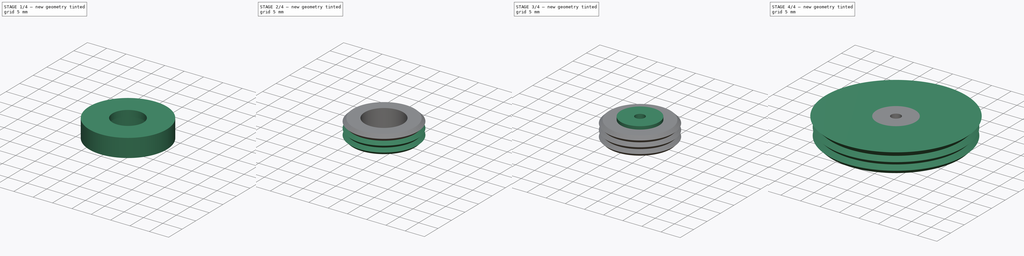
[diagram: build sequence overview — one tinted view per stage of 4, left to right]
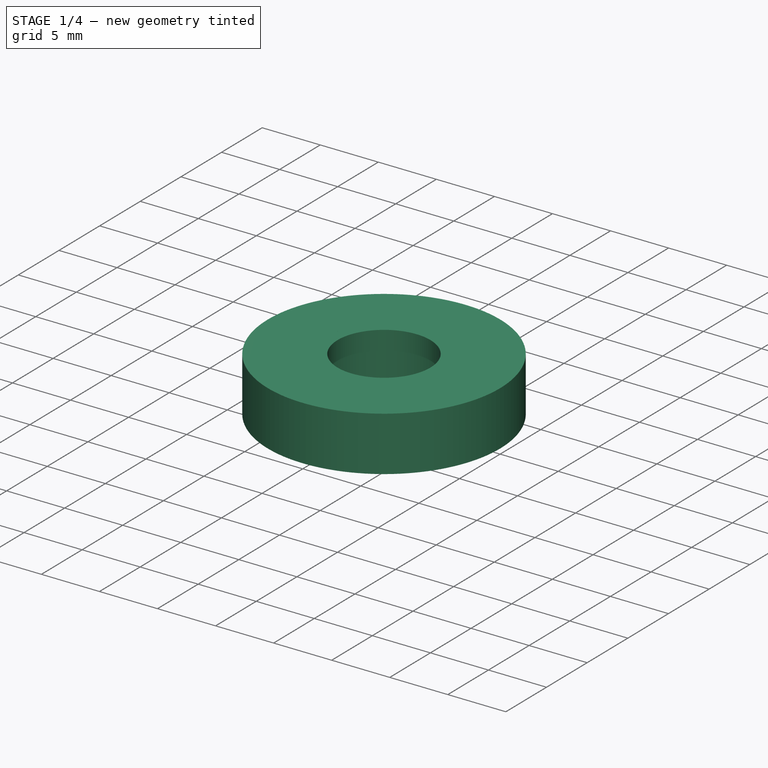
[diagram: stage 1 of 4 — iso view after this stage's code; geometry added in this stage tinted green]
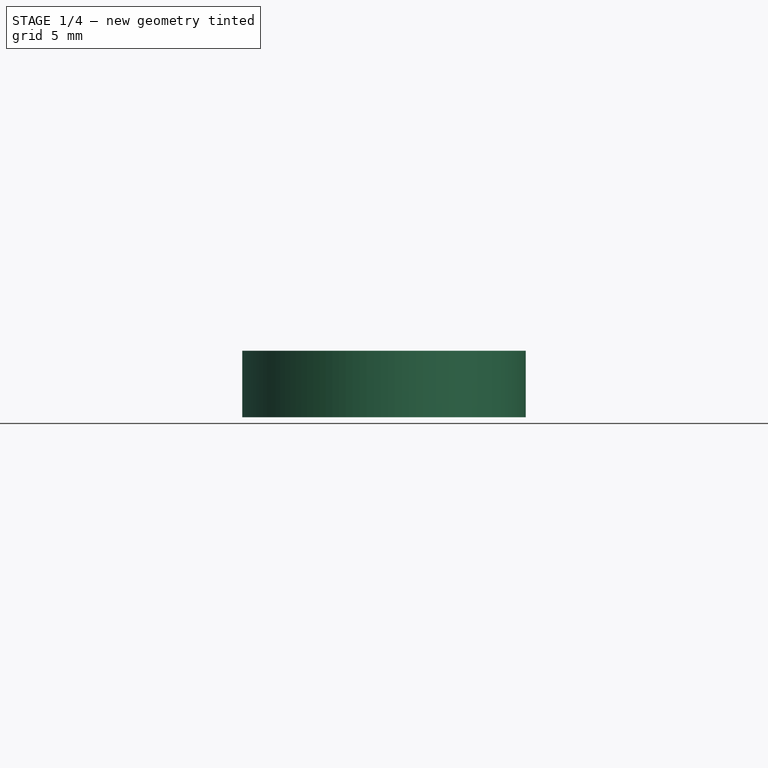
[diagram: stage 1 of 4 — front view after this stage's code; geometry added in this stage tinted green]
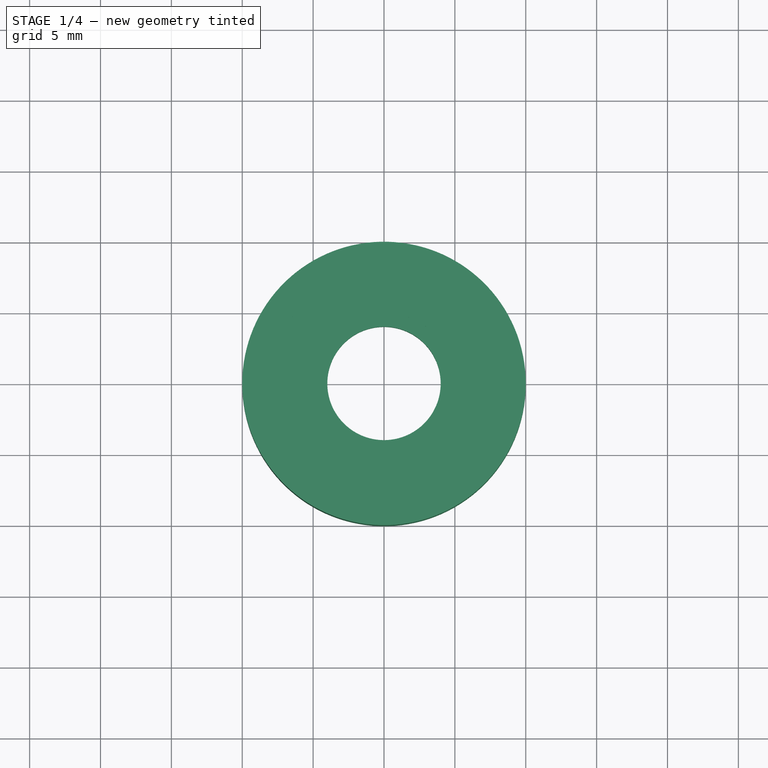
[diagram: stage 1 of 4 — top view after this stage's code; geometry added in this stage tinted green]
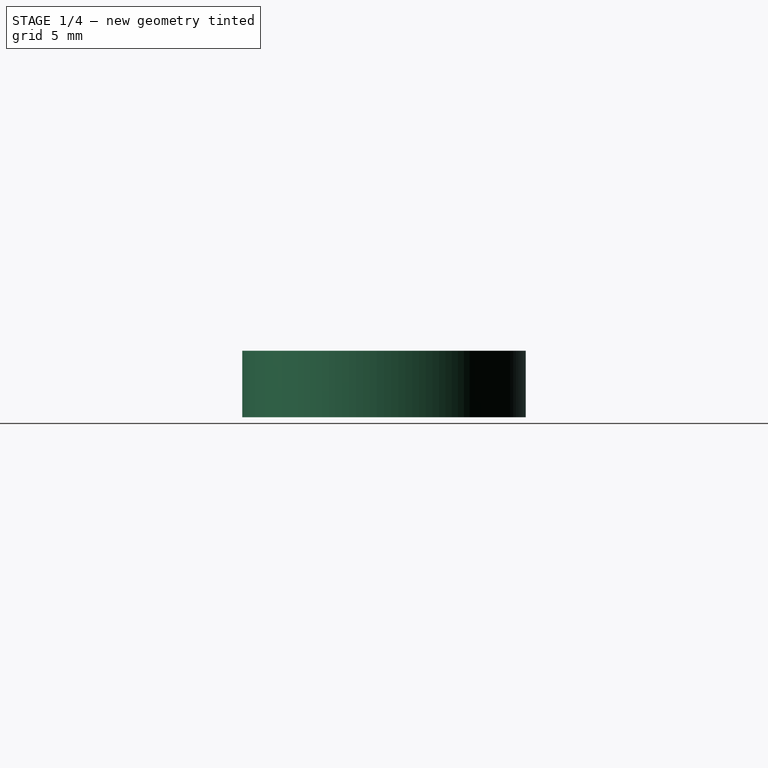
[diagram: stage 1 of 4 — right view after this stage's code; geometry added in this stage tinted green]
FCSTD DOCUMENT  (FreeCAD 0.16RUnknown)
Label: LensFixTemplate
License: All rights reserved
LicenseURL: http://en.wikipedia.org/wiki/All_rights_reserved
objects: Part::FeaturePython×4, Sketcher::SketchObject×3, PartDesign::Revolution×3, App::DocumentObjectGroup×2, Spreadsheet::Sheet×1, Part::MultiCommon×1, Part::MultiFuse×1
note: 15 computed .brp shape members not serialized (recipe doc carries the construction recipe); baked Part::Feature solids carry a one-line shape summary decoded from their .brp

FEATURE [Sketcher::SketchObject] Sketch001  label="OuterGroove"
  Placement = pos=(0,0,0) rot=(1,0,0;1.5708rad)
  sketch-geometry (6):
    g0: LineSegment StartX=4 StartY=3.2 StartZ=0 EndX=4 EndY=1.6 EndZ=0
    g1: LineSegment StartX=4 StartY=1.6 StartZ=0 EndX=8 EndY=1.6 EndZ=0
    g2: LineSegment StartX=8 StartY=1.6 StartZ=0 EndX=8.8 EndY=2.4 EndZ=0
    g3: LineSegment StartX=8.8 StartY=2.4 StartZ=0 EndX=8 EndY=3.2 EndZ=0
    g4: LineSegment StartX=8 StartY=3.2 StartZ=0 EndX=4 EndY=3.2 EndZ=0
    g5: LineSegment [constr] StartX=4 StartY=2.4 StartZ=0 EndX=8.8 EndY=2.4 EndZ=0
  constraints (17):
    c: Coincident(g0,g1)
    c: Coincident(g1,g2)
    c: Coincident(g2,g3)
    c: Coincident(g3,g4)
    c: Coincident(g4,g0)
    c: Horizontal(g5)
    c: Horizontal(g1)
    c: Horizontal(g4)
    c: Vertical(g0)
    c: Perpendicular(g2,g3)
    c: PointOnObject(g5,g0)
    c: Coincident(g5,g2)
    c: Symmetric(g3,g1,g5)
    c: DistanceY(g0,g0) = 1.6
    c: DistanceX(g0) = 4
    c: DistanceY(g0) = 3.2
    c: DistanceX(g3) = 8
FEATURE [PartDesign::Revolution] Revolution001  label="OuterGroove001"
  Angle = 360
  Axis = (0,0,1)
  Base = (0,0,0)
  Placement = pos=(0,0,0) rot=(1,0,0;1.5708rad)
  ReferenceAxis = -> Sketch001 [V_Axis]
  Reversed = true
  Sketch = -> Sketch001
FEATURE [Sketcher::SketchObject] Sketch002  label="InnerGrooveDom"
  Placement = pos=(0,0,0) rot=(1,0,0;1.5708rad)
  expr: Constraints[9] = pars.PlateThick - pars.LipThick
  sketch-geometry (4):
    g0: LineSegment StartX=5 StartY=3.2 StartZ=0 EndX=10 EndY=3.2 EndZ=0
    g1: LineSegment StartX=10 StartY=3.2 StartZ=0 EndX=10 EndY=-1.5 EndZ=0
    g2: LineSegment StartX=10 StartY=-1.5 StartZ=0 EndX=5 EndY=-1.5 EndZ=0
    g3: LineSegment StartX=5 StartY=-1.5 StartZ=0 EndX=5 EndY=3.2 EndZ=0
  constraints (12):
    c: Coincident(g0,g1)
    c: Coincident(g1,g2)
    c: Coincident(g2,g3)
    c: Coincident(g3,g0)
    c: Horizontal(g0)
    c: Horizontal(g2)
    c: Vertical(g1)
    c: Vertical(g3)
    c: DistanceX(g0) = 5
    c: DistanceY(g0) = 3.2
    c: DistanceY(g2) = -1.5
    c: DistanceX(g0) = 10
FEATURE [PartDesign::Revolution] Revolution002  label="InnerGrooveDom001"
  Angle = 360
  Axis = (0,0,1)
  Base = (0,0,0)
  Placement = pos=(0,0,0) rot=(1,0,0;1.5708rad)
  ReferenceAxis = -> Sketch002 [V_Axis]
  Reversed = true
  Sketch = -> Sketch002
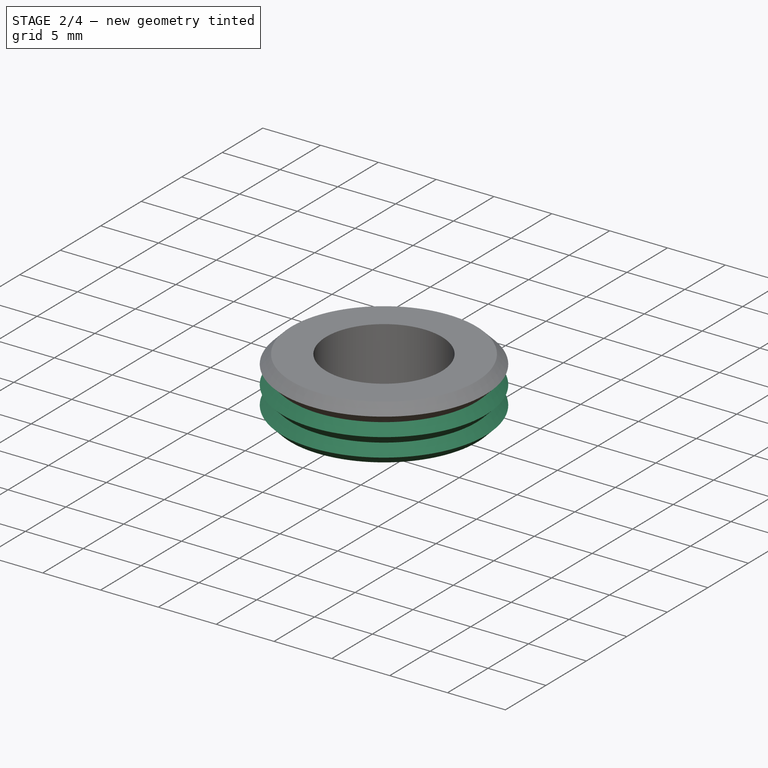
[diagram: stage 2 of 4 — iso view after this stage's code; geometry added in this stage tinted green]
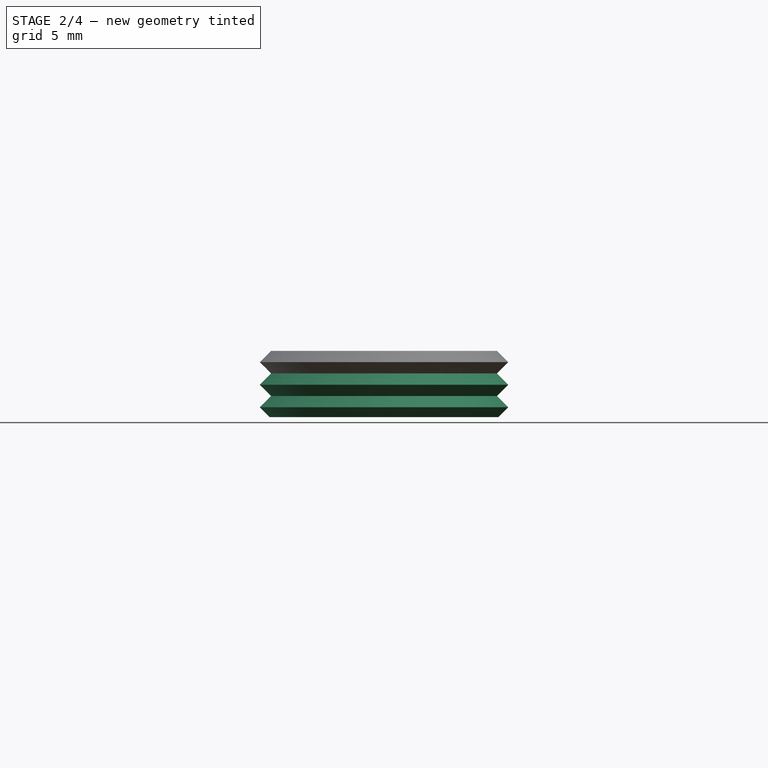
[diagram: stage 2 of 4 — front view after this stage's code; geometry added in this stage tinted green]
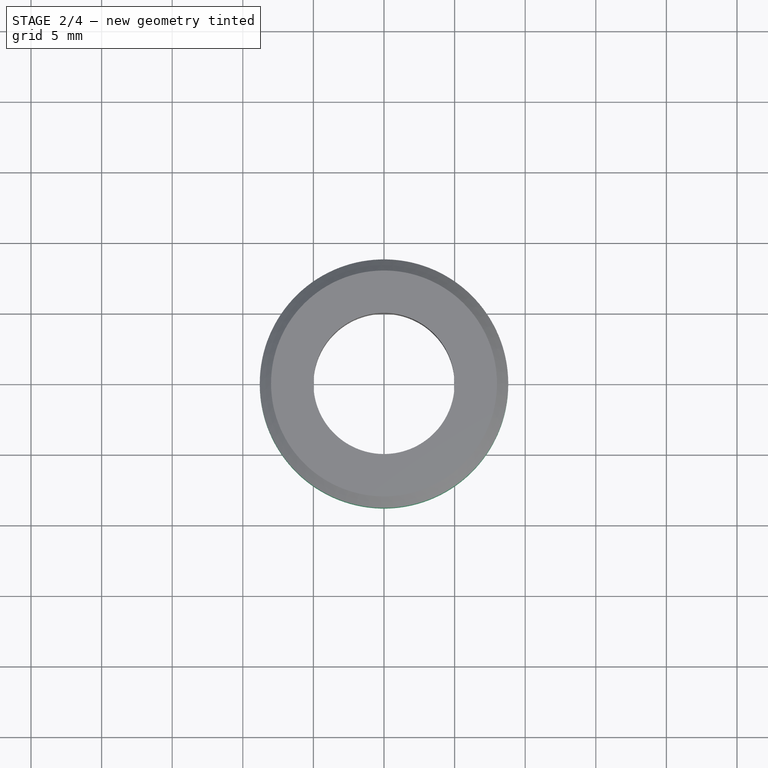
[diagram: stage 2 of 4 — top view after this stage's code; geometry added in this stage tinted green]
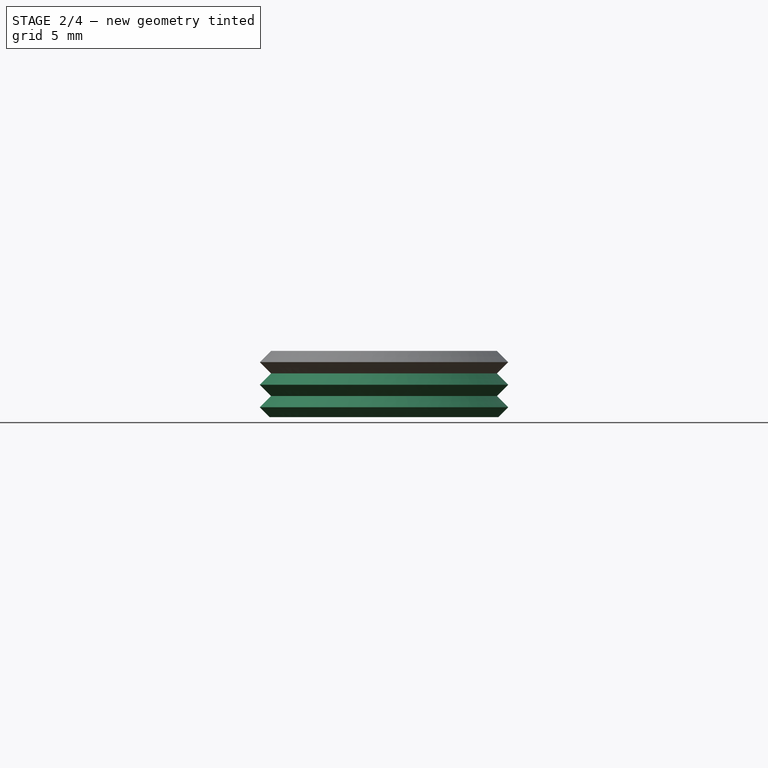
[diagram: stage 2 of 4 — right view after this stage's code; geometry added in this stage tinted green]
FEATURE [Part::FeaturePython] Array  label="OuterGrooves"  # Draft array (typed FeaturePython)
  Angle = 360
  ArrayType = 0
  Axis = (0,0,1)
  Base = -> Revolution001
  Center = (0,0,0)
  Fuse = true
  IntervalAxis = (0,0,0)
  IntervalX = (1,0,0)
  IntervalY = (0,1,0)
  IntervalZ = (0,0,-1.6)
  NumberPolar = 1
  NumberX = 1
  NumberY = 1
  NumberZ = 6
FEATURE [Part::MultiCommon] Common  label="InnerGrooveTool"
  Shapes = -> [Array,Revolution002]
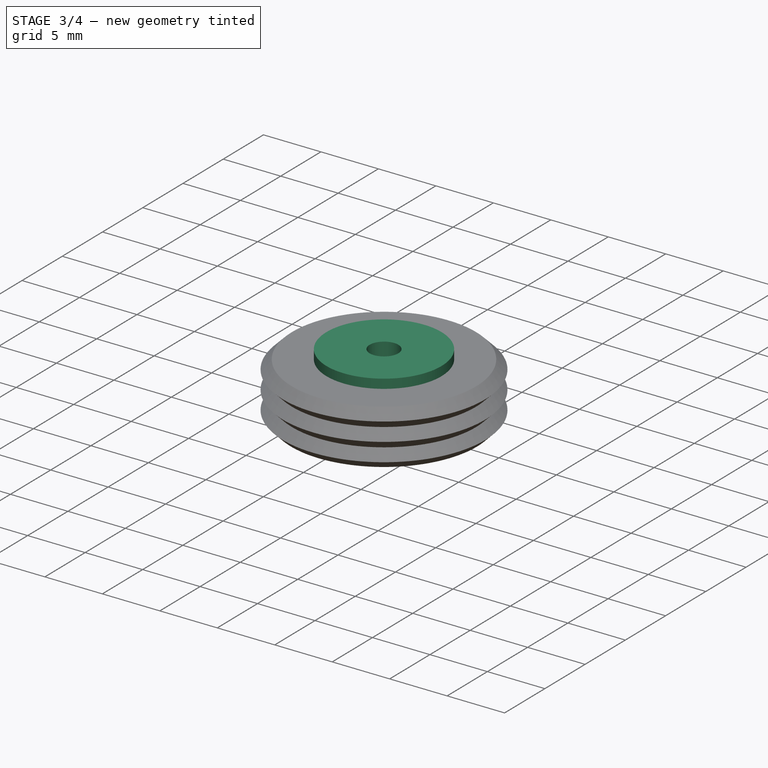
[diagram: stage 3 of 4 — iso view after this stage's code; geometry added in this stage tinted green]
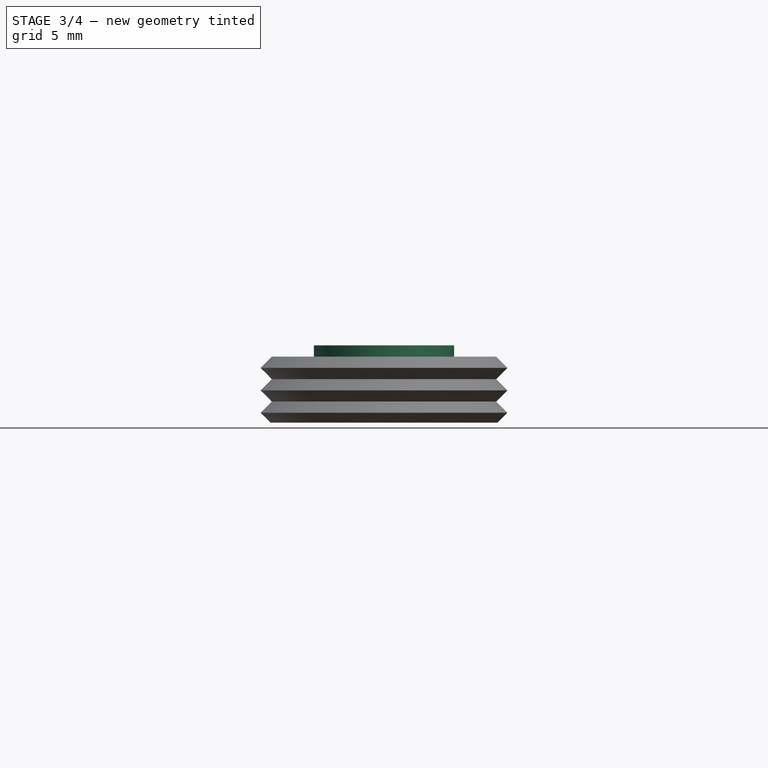
[diagram: stage 3 of 4 — front view after this stage's code; geometry added in this stage tinted green]
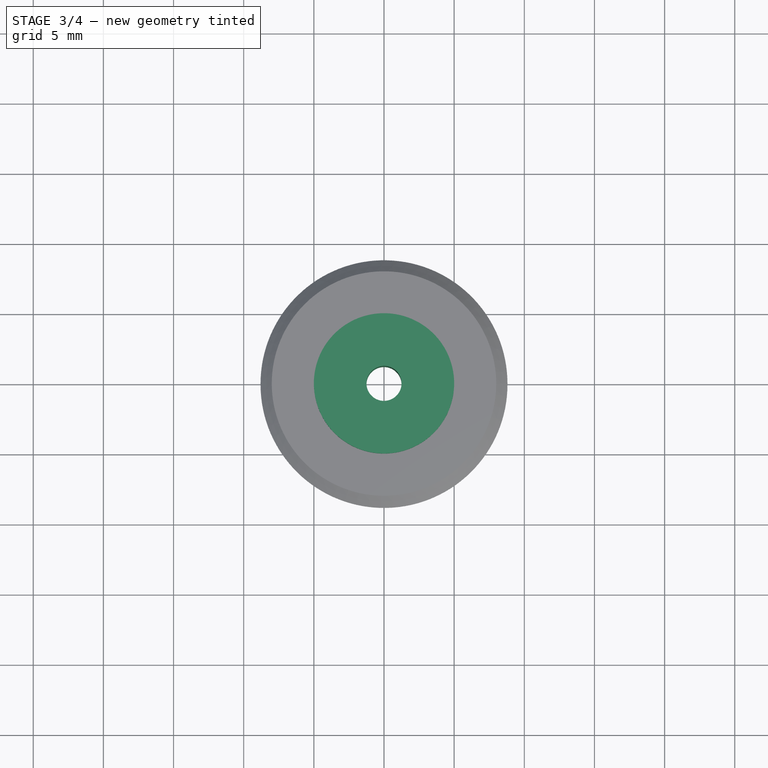
[diagram: stage 3 of 4 — top view after this stage's code; geometry added in this stage tinted green]
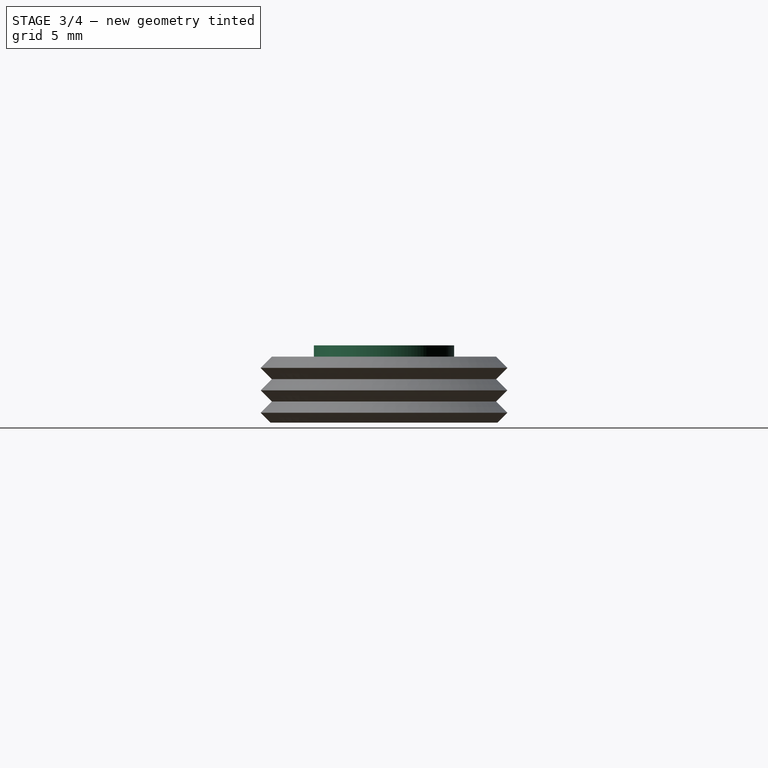
[diagram: stage 3 of 4 — right view after this stage's code; geometry added in this stage tinted green]
FEATURE [App::DocumentObjectGroup] Group  label="Reference"
  Group = -> [FlexiRing_01]
FEATURE [Sketcher::SketchObject] Sketch  label="Main"
  Placement = pos=(0,0,0) rot=(1,0,0;1.5708rad)
  expr: Constraints[12] = pars.PlateThick + 1.5
  expr: Constraints[17] = pars.PlateThick
  expr: Constraints[13] = pars.LipThick
  sketch-geometry (6):
    g0: LineSegment StartX=1.25 StartY=4 StartZ=0 EndX=1.25 EndY=-1.5 EndZ=0
    g1: LineSegment StartX=1.25 StartY=-1.5 StartZ=0 EndX=8 EndY=-1.5 EndZ=0
    g2: LineSegment StartX=8 StartY=-1.5 StartZ=0 EndX=8 EndY=3.2 EndZ=0
    g3: LineSegment StartX=8 StartY=3.2 StartZ=0 EndX=5 EndY=3.2 EndZ=0
    g4: LineSegment StartX=5 StartY=3.2 StartZ=0 EndX=5 EndY=4 EndZ=0
    g5: LineSegment StartX=5 StartY=4 StartZ=0 EndX=1.25 EndY=4 EndZ=0
  constraints (18):
    c: Coincident(g0,g1)
    c: Coincident(g1,g2)
    c: Coincident(g2,g3)
    c: Coincident(g3,g4)
    c: Coincident(g4,g5)
    c: Coincident(g0,g5)
    c: Horizontal(g3)
    c: Horizontal(g5)
    c: Horizontal(g1)
    c: Vertical(g0)
    c: Vertical(g2)
    c: Vertical(g4)
    c: DistanceY(g0,g0) = 5.5
    c: DistanceY(g4,g4) = 0.8
    c: DistanceX(g2) = 8
    c: DistanceX(g4) = 5
    c: DistanceX(g0) = 1.25
    c: DistanceY(g0) = 4
FEATURE [PartDesign::Revolution] Revolution  label="Main001"
  Angle = 360
  Axis = (0,0,1)
  Base = (0,0,0)
  Placement = pos=(0,0,0) rot=(1,0,0;1.5708rad)
  ReferenceAxis = -> Sketch [V_Axis]
  Reversed = true
  Sketch = -> Sketch
FEATURE [Part::MultiFuse] Fusion001  label="GrooveAdd"
  Shapes = -> [Revolution,Common]
FEATURE [Part::FeaturePython] refine  label="refine_GrooveAdd"  # WARN: FeaturePython — macro-defined, semantics opaque (R4)
  Base = -> Fusion001
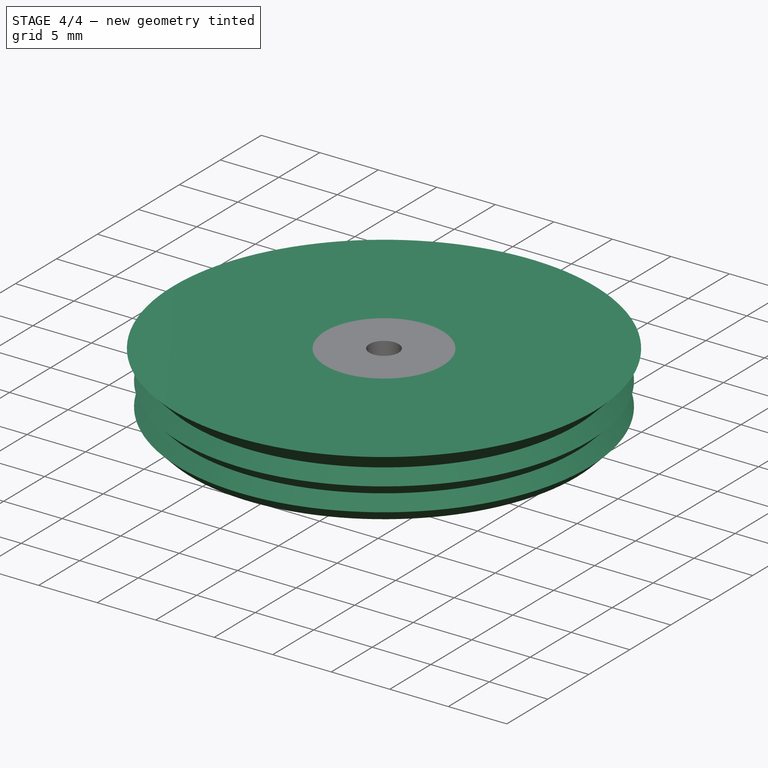
[diagram: stage 4 of 4 — iso view after this stage's code; geometry added in this stage tinted green]
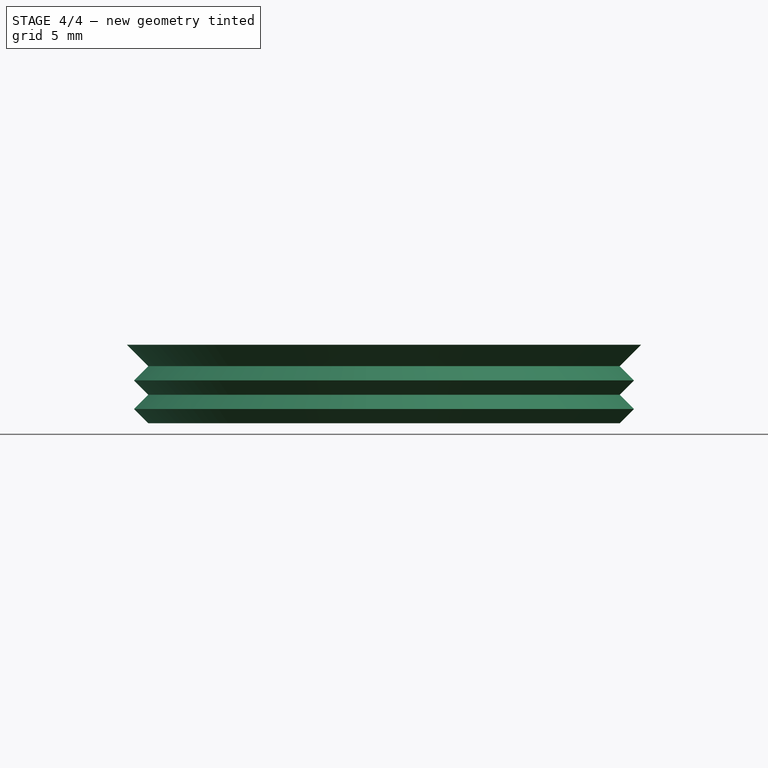
[diagram: stage 4 of 4 — front view after this stage's code; geometry added in this stage tinted green]
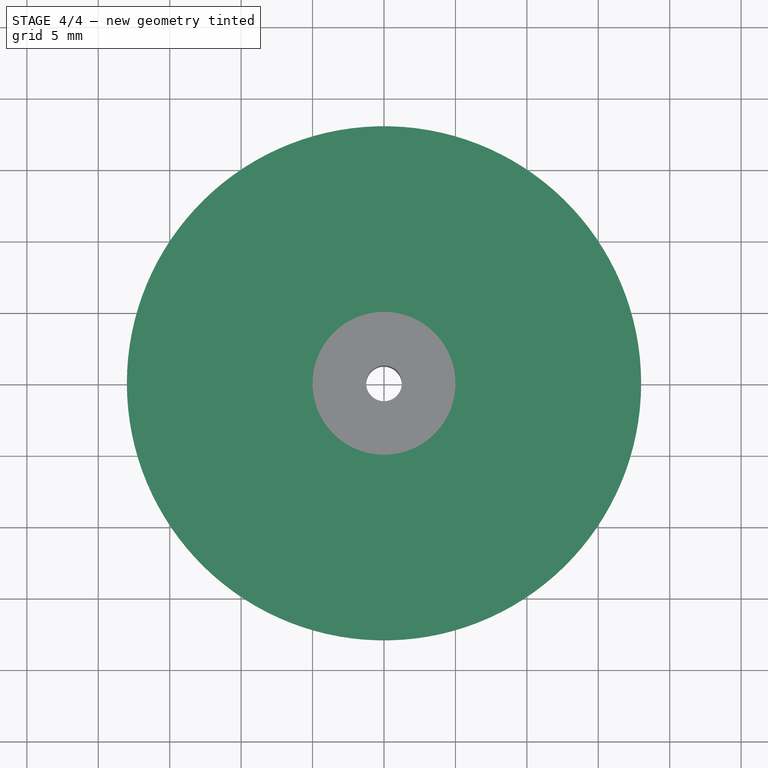
[diagram: stage 4 of 4 — top view after this stage's code; geometry added in this stage tinted green]
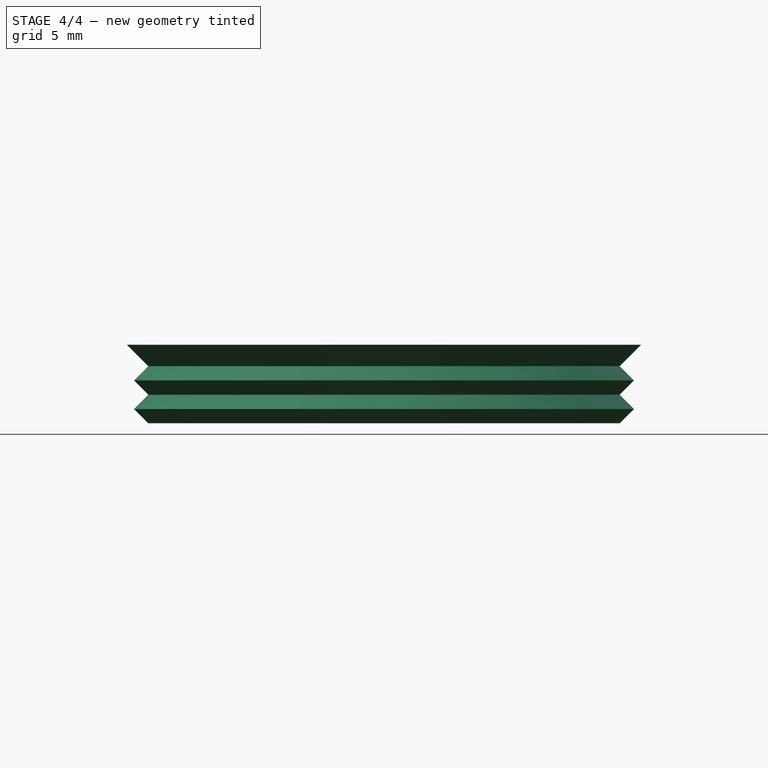
[diagram: stage 4 of 4 — right view after this stage's code; geometry added in this stage tinted green]
FEATURE [Spreadsheet::Sheet] Spreadsheet  label="pars"
  cells = A1=Bolts and Nuts; B1=Value; D1=Components; E1=Value; A2=Thread Tight Tolerance (Radius, ratio); B2(ThrTighRatio)=0.96; D2=Tight Cilinder Tolerances (Radius, mm); E2(CilTight)=0.1; A3=Thread Tight Tolerance (Radius, mm); B3(ThrTightmm)=0.1; D3=Loose Cilinder Tolerances (Radius, mm); E3(CilLoose)=0.1; A5=Nut Slot Width Clearance (mm); B5(NutWidthClearmm)=0.1; A6=Nut Slot Thickess Clearance (mm); B6(NutThickClearmm)=0.1; A13=Particular parameters; B13=Value; A14=Plate Thickness; B14(PlateThick)=4; A15=Lip Thickness; B15(LipThick)=0.8; A16=Channel Diameter; B16(ChanDia)=2.5
FEATURE [Part::FeaturePython] FlexiRing_01  label="FlexiRing"  # a2plus imported part (geometry in sourceFile) (typed FeaturePython)
  fixedPosition = true
  sourceFile = ./FlexiRing.fcstd
  timeLastImport = 1.52147e+09
  updateColors = true
FEATURE [App::DocumentObjectGroup] Group001  label="src"
  Group = -> [Fusion001,refine]
FEATURE [Part::FeaturePython] Clone  label="LensFixTemplate"  # Draft clone (typed FeaturePython)
  Objects = -> [refine]
  Scale = (1,1,1)
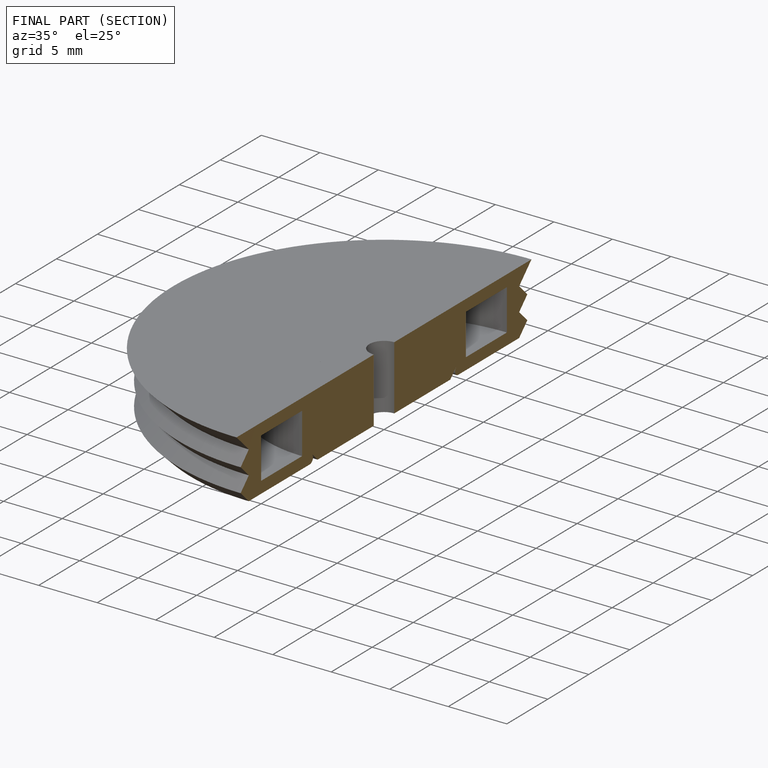
[diagram: finished part — half-section view (interior)]
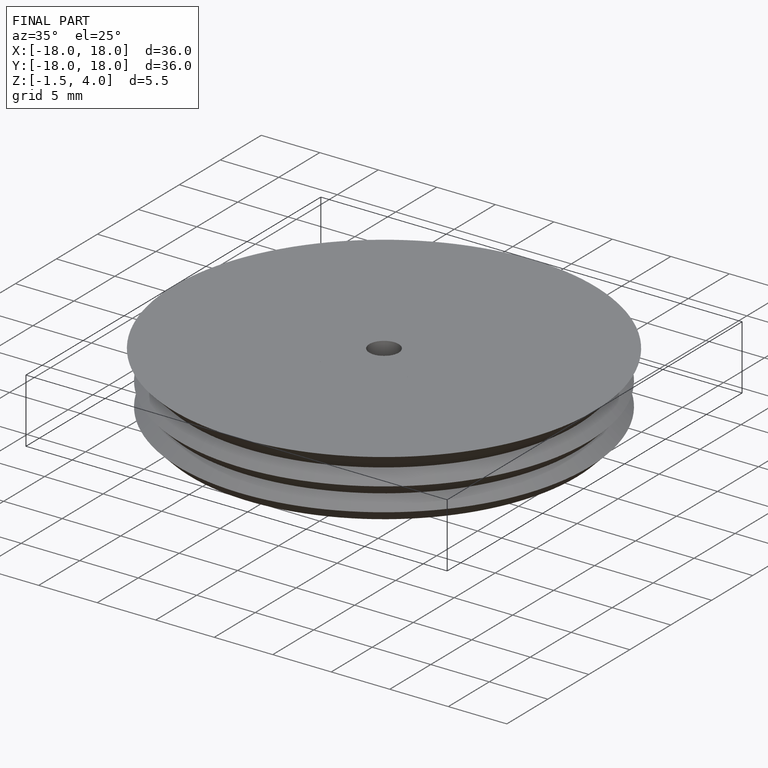
[diagram: finished part — iso view with bounding-box wireframe]
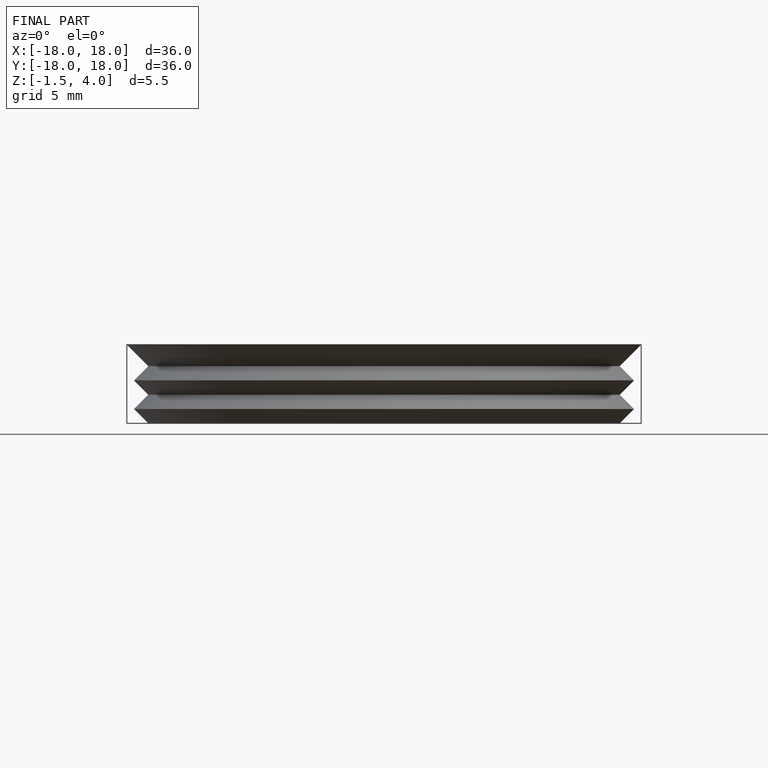
[diagram: finished part — front view with bounding-box wireframe]
